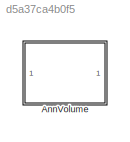
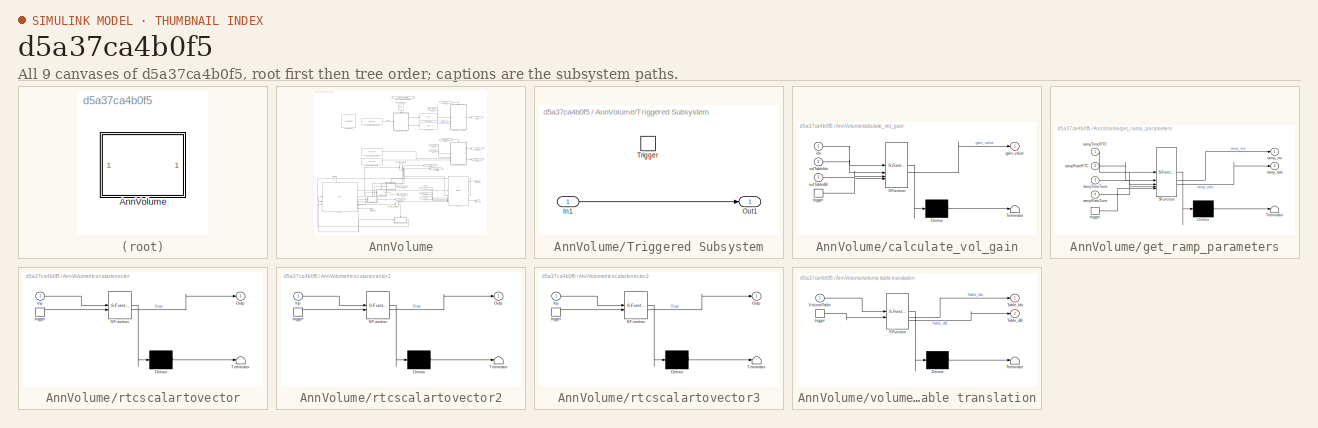
[diagram: thumbnail index - all 9 canvases of the model, root first then tree order]
MODEL slx_d5a37ca4b0f5
KIND library
CONFIG AbsTol = auto
CONFIG EnableMultiTasking = off
CONFIG FixedStep = auto
CONFIG MaxStep = auto
CONFIG MinStep = auto
CONFIG RelTol = 1e-3
CONFIG SampleTimeConstraint = Unconstrained
CONFIG SolverName = VariableStepAuto
CONFIG StartTime = 0.0
CONFIG StopTime = 10.0
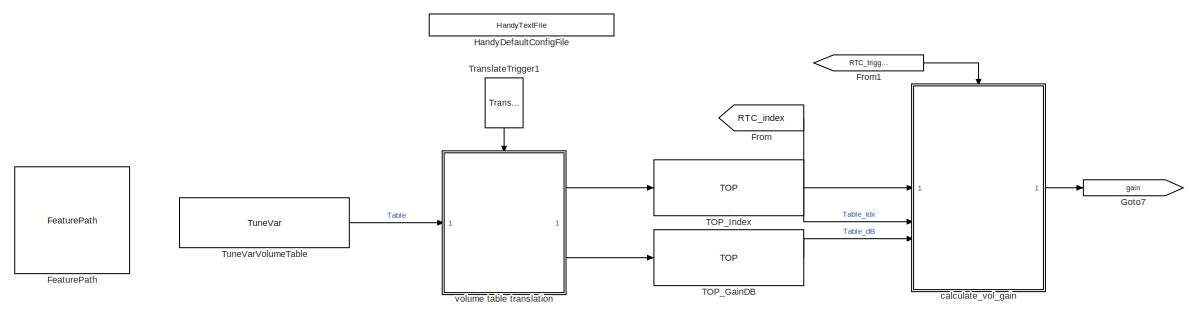
[diagram: AnnVolume - part 1/2, full width, top band]
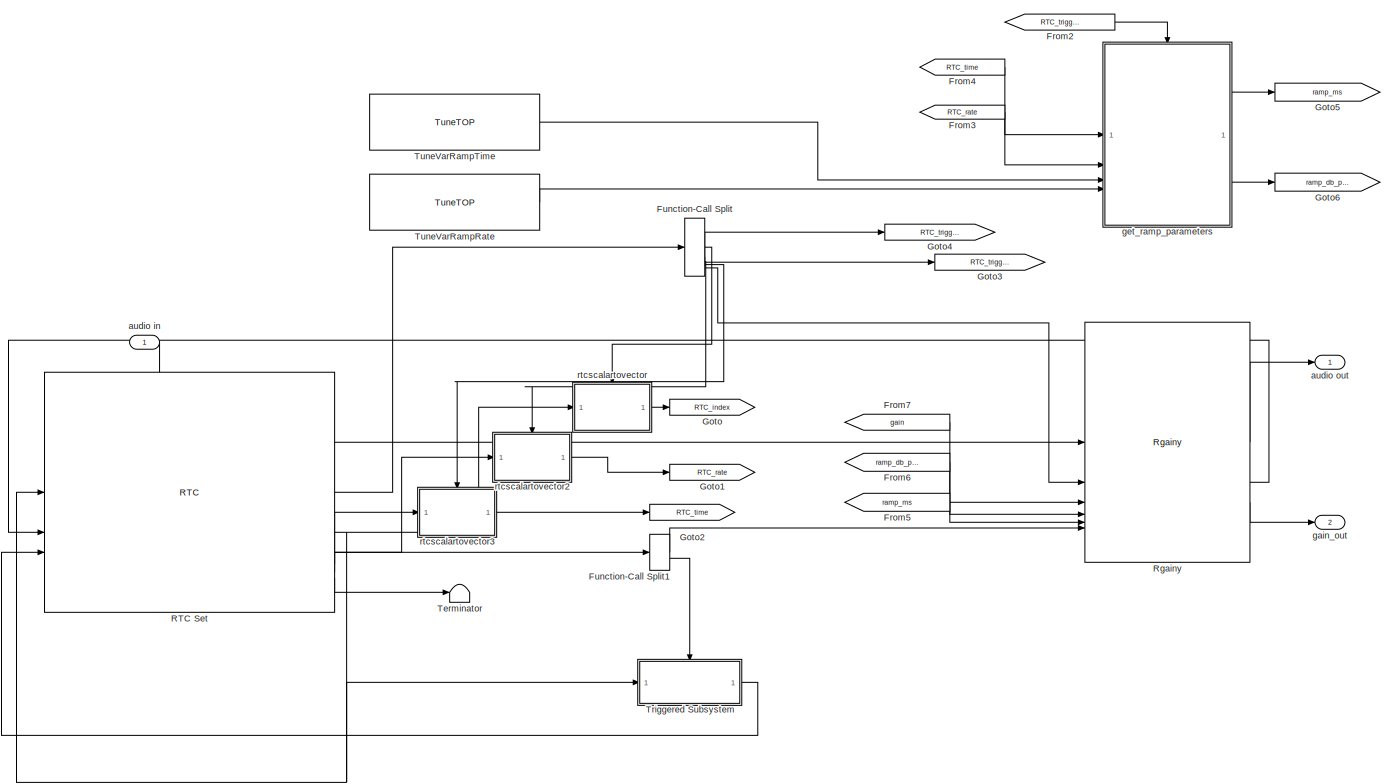
[diagram: AnnVolume - part 2/2, full width, middle band]
BLOCK [SubSystem] AnnVolume
  MoveFcn = VolumeMask.CB_TriggerInit(gcbh);
BLOCK [Reference] AnnVolume/FeaturePath  REF=FeaturePath/FeaturePath
  SourceBlock = FeaturePath/FeaturePath
  SourceProductName = Bose Talaria
  SourceType = Talaria Feature Path
BLOCK [From] AnnVolume/From
  GotoTag = RTC_index
BLOCK [From] AnnVolume/From1
  GotoTag = RTC_trigger_table
BLOCK [From] AnnVolume/From2
  GotoTag = RTC_trigger_ramp
BLOCK [From] AnnVolume/From3
  GotoTag = RTC_rate
BLOCK [From] AnnVolume/From4
  GotoTag = RTC_time
BLOCK [From] AnnVolume/From5
  GotoTag = ramp_ms
BLOCK [From] AnnVolume/From6
  GotoTag = ramp_db_per_sec
BLOCK [From] AnnVolume/From7
  GotoTag = gain
BLOCK [FunctionCallSplit] AnnVolume/Function-Call Split
  IconShape = distinctive
  NumOutputPorts = 6
BLOCK [FunctionCallSplit] AnnVolume/Function-Call Split1
  IconShape = distinctive
  NumOutputPorts = 2
  OutputPortLayout = default
BLOCK [Goto] AnnVolume/Goto
  GotoTag = RTC_index
BLOCK [Goto] AnnVolume/Goto1
  GotoTag = RTC_rate
BLOCK [Goto] AnnVolume/Goto2
  GotoTag = RTC_time
BLOCK [Goto] AnnVolume/Goto3
  GotoTag = RTC_trigger_table
BLOCK [Goto] AnnVolume/Goto4
  GotoTag = RTC_trigger_ramp
BLOCK [Goto] AnnVolume/Goto5
  GotoTag = ramp_ms
BLOCK [Goto] AnnVolume/Goto6
  GotoTag = ramp_db_per_sec
BLOCK [Goto] AnnVolume/Goto7
  GotoTag = gain
BLOCK [Reference] AnnVolume/HandyDefaultConfigFile  REF=HandyTextFile/HandyTextFile
  SourceBlock = HandyTextFile/HandyTextFile
  SourceProductName = Bose Talaria
  SourceType = Talaria Handy Text File
BLOCK [Reference] AnnVolume/RTC Set  REF=RTC/RTC
  Description = Sets new target volume.\nProvide the target volume as 8 bit index value to be mapped through a tunable VolumeTable.\n \nTo use slope-based ramping:\n----------------------------------\nWhen db_per_second has a non-zero value,ramp_milliseconds is ignored and db_per_second controls the ramp.\n \nTo use time-based ramping:\n----------------------------------\nThe value of db_per_second must be zero for ramp m...<+40ch>
  SourceBlock = RTC/RTC
  SourceProductName = Bose Talaria
  SourceType = Talaria RTC Receive
BLOCK [Reference] AnnVolume/Rgainy  REF=RgainyBtc/Rgainy
  SourceBlock = RgainyBtc/Rgainy
  SourceType = Blocklib Rgainy
BLOCK [Reference] AnnVolume/TOP_GainDB  REF=TOP/TOP
  SourceBlock = TOP/TOP
  SourceProductName = Bose Talaria
  SourceType = Talaria Target Overlay Parameter
BLOCK [Reference] AnnVolume/TOP_Index  REF=TOP/TOP
  SourceBlock = TOP/TOP
  SourceProductName = Bose Talaria
  SourceType = Talaria Target Overlay Parameter
BLOCK [Terminator] AnnVolume/Terminator
BLOCK [Reference] AnnVolume/TranslateTrigger1  REF=TuneVar/TranslateTrigger
  NameLocation = left
  SourceBlock = TuneVar/TranslateTrigger
  SourceProductName = Bose Talaria
  SourceType = Talaria Translate Trigger
BLOCK [SubSystem] AnnVolume/Triggered Subsystem
  TreatAsAtomicUnit = on
BLOCK [Inport] AnnVolume/Triggered Subsystem/In1
BLOCK [Outport] AnnVolume/Triggered Subsystem/Out1
BLOCK [TriggerPort] AnnVolume/Triggered Subsystem/Trigger
  StatesWhenEnabling = held
  TriggerType = function-call
  VariantControl = Variant
BLOCK [Reference] AnnVolume/TuneVarRampRate  REF=TuneVar/TuneTOP
  SourceBlock = TuneVar/TuneTOP
  SourceProductName = Bose Talaria
  SourceType = Talaria Trivial Tune TOP
BLOCK [Reference] AnnVolume/TuneVarRampTime  REF=TuneVar/TuneTOP
  SourceBlock = TuneVar/TuneTOP
  SourceProductName = Bose Talaria
  SourceType = Talaria Trivial Tune TOP
BLOCK [Reference] AnnVolume/TuneVarVolumeTable  REF=TuneVar/TuneVar
  Description = <HTML>Gain table maps index to gain.\nThe index values are <FONT color="red">normalized</Font> floats between 0 and 1 while the gains are in dB (i.e. 0 implies no attenuation).\n</html>
  SourceBlock = TuneVar/TuneVar
  SourceProductName = Bose Talaria
  SourceType = Talaria Tune Variable
BLOCK [Inport] AnnVolume/audio in
BLOCK [Outport] AnnVolume/audio out
  VectorParamsAs1DForOutWhenUnconnected = off
BLOCK [SubSystem] AnnVolume/calculate_vol_gain
  ErrorFcn = Stateflow.Translate.translate
  PermitHierarchicalResolution = ExplicitOnly
  RTWSystemCode = Reusable function
  SFBlockType = MATLAB Function
  TreatAsAtomicUnit = on
BLOCK [Demux] AnnVolume/calculate_vol_gain/ Demux 
  Outputs = 1
BLOCK [S-Function] AnnVolume/calculate_vol_gain/ SFunction 
  EnableBusSupport = off
  FunctionName = sf_sfun
  PortCounts = [4 2]
  SFcnIsStateOwnerBlock = off
  SFunctionDeploymentMode = off
  Tag = Stateflow S-Function 4
BLOCK [Terminator] AnnVolume/calculate_vol_gain/ Terminator 
BLOCK [Outport] AnnVolume/calculate_vol_gain/gain_value
  VectorParamsAs1DForOutWhenUnconnected = off
BLOCK [Inport] AnnVolume/calculate_vol_gain/idx
BLOCK [TriggerPort] AnnVolume/calculate_vol_gain/trigger
  ShowOutputPort = on
  StatesWhenEnabling = held
  TriggerType = function-call
  VariantControl = Variant
BLOCK [Inport] AnnVolume/calculate_vol_gain/volTableIdx
  Port = 2
BLOCK [Inport] AnnVolume/calculate_vol_gain/volTabledB
  Port = 3
BLOCK [Outport] AnnVolume/gain_out
  Port = 2
  VectorParamsAs1DForOutWhenUnconnected = off
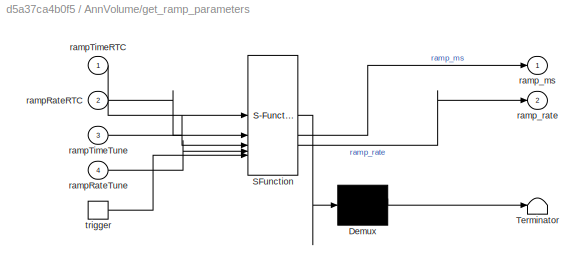
BLOCK [SubSystem] AnnVolume/get_ramp_parameters
  ErrorFcn = Stateflow.Translate.translate
  PermitHierarchicalResolution = ExplicitOnly
  RTWSystemCode = Reusable function
  SFBlockType = MATLAB Function
  TreatAsAtomicUnit = on
BLOCK [Demux] AnnVolume/get_ramp_parameters/ Demux 
  Outputs = 1
BLOCK [S-Function] AnnVolume/get_ramp_parameters/ SFunction 
  EnableBusSupport = off
  FunctionName = sf_sfun
  PortCounts = [5 3]
  SFcnIsStateOwnerBlock = off
  SFunctionDeploymentMode = off
  Tag = Stateflow S-Function 1
BLOCK [Terminator] AnnVolume/get_ramp_parameters/ Terminator 
BLOCK [Inport] AnnVolume/get_ramp_parameters/rampRateRTC
  Port = 2
BLOCK [Inport] AnnVolume/get_ramp_parameters/rampRateTune
  Port = 4
BLOCK [Inport] AnnVolume/get_ramp_parameters/rampTimeRTC
BLOCK [Inport] AnnVolume/get_ramp_parameters/rampTimeTune
  Port = 3
BLOCK [Outport] AnnVolume/get_ramp_parameters/ramp_ms
  VectorParamsAs1DForOutWhenUnconnected = off
BLOCK [Outport] AnnVolume/get_ramp_parameters/ramp_rate
  Port = 2
  VectorParamsAs1DForOutWhenUnconnected = off
BLOCK [TriggerPort] AnnVolume/get_ramp_parameters/trigger
  ShowOutputPort = on
  StatesWhenEnabling = held
  TriggerType = function-call
  VariantControl = Variant
BLOCK [SubSystem] AnnVolume/rtcscalartovector
  ErrorFcn = Stateflow.Translate.translate
  PermitHierarchicalResolution = ExplicitOnly
  SFBlockType = MATLAB Function
  TreatAsAtomicUnit = on
BLOCK [Demux] AnnVolume/rtcscalartovector/ Demux 
  Outputs = 1
BLOCK [S-Function] AnnVolume/rtcscalartovector/ SFunction 
  EnableBusSupport = off
  FunctionName = sf_sfun
  PortCounts = [2 2]
  SFcnIsStateOwnerBlock = off
  SFunctionDeploymentMode = off
  Tag = Stateflow S-Function 6
BLOCK [Terminator] AnnVolume/rtcscalartovector/ Terminator 
BLOCK [Inport] AnnVolume/rtcscalartovector/Inp
BLOCK [Outport] AnnVolume/rtcscalartovector/Outp
  VectorParamsAs1DForOutWhenUnconnected = off
BLOCK [TriggerPort] AnnVolume/rtcscalartovector/trigger
  ShowOutputPort = on
  StatesWhenEnabling = held
  TriggerType = function-call
  VariantControl = Variant
BLOCK [SubSystem] AnnVolume/rtcscalartovector2
  ErrorFcn = Stateflow.Translate.translate
  PermitHierarchicalResolution = ExplicitOnly
  SFBlockType = MATLAB Function
  TreatAsAtomicUnit = on
BLOCK [Demux] AnnVolume/rtcscalartovector2/ Demux 
  Outputs = 1
BLOCK [S-Function] AnnVolume/rtcscalartovector2/ SFunction 
  EnableBusSupport = off
  FunctionName = sf_sfun
  PortCounts = [2 2]
  SFcnIsStateOwnerBlock = off
  SFunctionDeploymentMode = off
  Tag = Stateflow S-Function 8
BLOCK [Terminator] AnnVolume/rtcscalartovector2/ Terminator 
BLOCK [Inport] AnnVolume/rtcscalartovector2/Inp
BLOCK [Outport] AnnVolume/rtcscalartovector2/Outp
  VectorParamsAs1DForOutWhenUnconnected = off
BLOCK [TriggerPort] AnnVolume/rtcscalartovector2/trigger
  ShowOutputPort = on
  StatesWhenEnabling = held
  TriggerType = function-call
  VariantControl = Variant
BLOCK [SubSystem] AnnVolume/rtcscalartovector3
  ErrorFcn = Stateflow.Translate.translate
  PermitHierarchicalResolution = ExplicitOnly
  SFBlockType = MATLAB Function
  TreatAsAtomicUnit = on
BLOCK [Demux] AnnVolume/rtcscalartovector3/ Demux 
  Outputs = 1
BLOCK [S-Function] AnnVolume/rtcscalartovector3/ SFunction 
  EnableBusSupport = off
  FunctionName = sf_sfun
  PortCounts = [2 2]
  SFcnIsStateOwnerBlock = off
  SFunctionDeploymentMode = off
  Tag = Stateflow S-Function 9
BLOCK [Terminator] AnnVolume/rtcscalartovector3/ Terminator 
BLOCK [Inport] AnnVolume/rtcscalartovector3/Inp
BLOCK [Outport] AnnVolume/rtcscalartovector3/Outp
  VectorParamsAs1DForOutWhenUnconnected = off
BLOCK [TriggerPort] AnnVolume/rtcscalartovector3/trigger
  ShowOutputPort = on
  StatesWhenEnabling = held
  TriggerType = function-call
  VariantControl = Variant
BLOCK [SubSystem] AnnVolume/volume table translation
  ErrorFcn = Stateflow.Translate.translate
  PermitHierarchicalResolution = ExplicitOnly
  SFBlockType = MATLAB Function
  TreatAsAtomicUnit = on
BLOCK [Demux] AnnVolume/volume table translation/ Demux 
  Outputs = 1
BLOCK [S-Function] AnnVolume/volume table translation/ SFunction 
  EnableBusSupport = off
  FunctionName = sf_sfun
  PortCounts = [2 3]
  SFcnIsStateOwnerBlock = off
  SFunctionDeploymentMode = off
  Tag = Stateflow S-Function 7
BLOCK [Terminator] AnnVolume/volume table translation/ Terminator 
BLOCK [Outport] AnnVolume/volume table translation/Table_Idx
  VectorParamsAs1DForOutWhenUnconnected = off
BLOCK [Outport] AnnVolume/volume table translation/Table_dB
  Port = 2
  VectorParamsAs1DForOutWhenUnconnected = off
BLOCK [Inport] AnnVolume/volume table translation/VolumeTable
BLOCK [TriggerPort] AnnVolume/volume table translation/trigger
  ShowOutputPort = on
  StatesWhenEnabling = held
  TriggerType = function-call
  VariantControl = Variant
CHART AnnVolume/get_ramp_parameters states=1 transitions=1
  STATE_LABEL 'eML_blk_kernel()'
  STATE_LABEL 'SCRIPT:\nfunction [ramp_ms, ramp_rate] = get_ramp_parameters(...\n    rampTimeRTC, rampRateRTC,... % RTC message parameters\n    rampTimeTune, rampRateTune) % Tune parameters\n\n% Ramp time and rate are provided to the block through RTC messages. However \n% in case neither of them are provided, the block will use the default ramp \n% time given in the tune variables.\n% NOTE: Tune variable for ramp rate ...<+749ch>'
CHART AnnVolume/calculate_vol_gain states=1 transitions=1
  STATE_LABEL 'eML_blk_kernel()'
  STATE_LABEL 'SCRIPT:\nfunction gain_value = Calculate_Vol_Table(idx, volTableIdx, volTabledB)\n%#codegen\n% Calculate a gain_value from VolumeTable, table index, and index table\n%\niter=size(idx,2);\n%gain_value = single(0.0);\ngain_value=single(zeros(1,iter));\npercent =zeros(1,iter);\nlastIdx =zeros(1,iter);\n\nfor chind=1:iter\n  j = uint8(1);\n% workaround to type problem\nidx(chind) = cast(idx(chind), class(volTableId...<+1008ch>'
CHART AnnVolume/rtcscalartovector states=1 transitions=1
  STATE_LABEL 'eML_blk_kernel()'
  STATE_LABEL "SCRIPT:\nfunction Outp  = fcn(Inp)\n%\n% Convert input vector into a matrix\n%\n%\nInpsize=size(Inp,1);\n%#codegen\nOutp=(Inp').*uint32(ones(1,Inpsize));\n\n"
CHART AnnVolume/volume table translation states=1 transitions=1
  STATE_LABEL 'eML_blk_kernel()'
  STATE_LABEL "SCRIPT:\nfunction [Table_Idx,Table_dB] = fcn(VolumeTable)\n%#codegen\n%\n% Demux Volume Table matrix into an index vector amd gain vector\n%\n\n% Set up the size and datatype of our TOP outputs:\nmaxTableSize = numel(VolumeTable.Value) / 2;\nidxType = 'uint8';\nidxStorageType = 'uint32';\ndbType = 'single';\nTable_Idx = zeros(1,maxTableSize,idxStorageType);\nTable_dB = zeros(1,maxTableSize,dbType);\n\n% separate...<+998ch>"
CHART AnnVolume/rtcscalartovector2 states=1 transitions=1
  STATE_LABEL 'eML_blk_kernel()'
  STATE_LABEL "SCRIPT:\nfunction Outp  = fcn(Inp)\n%\n% Convert input vector into a matrix\n%\nInpsize=size(Inp,1);\n%#codegen\nOutp=(Inp').*uint32(ones(1,Inpsize));\n\n\n"
CHART AnnVolume/rtcscalartovector3 states=1 transitions=1
  STATE_LABEL 'eML_blk_kernel()'
  STATE_LABEL "SCRIPT:\nfunction Outp  = fcn(Inp)\n%\n% Convert input vector into a matrix\n%\nInpsize=size(Inp,1);\n%#codegen\nOutp=(Inp').*uint32(ones(1,Inpsize));\n\n\n\n\n"
CHART  states=0 transitions=0
CHART  states=0 transitions=0
CHART  states=0 transitions=0
CHART  states=0 transitions=0
CHART  states=0 transitions=0
CHART  states=0 transitions=0
